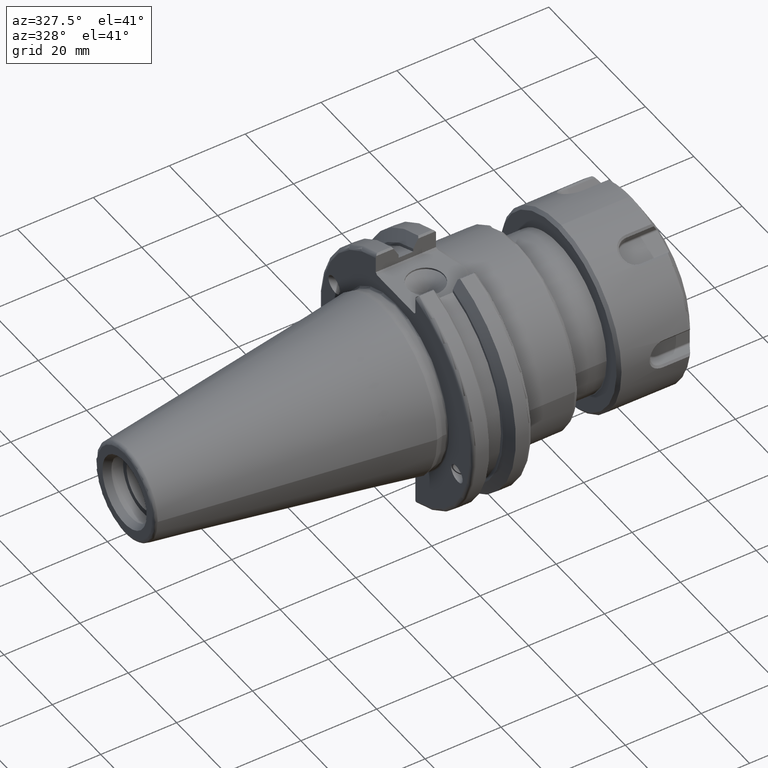
[diagram: clean part render]
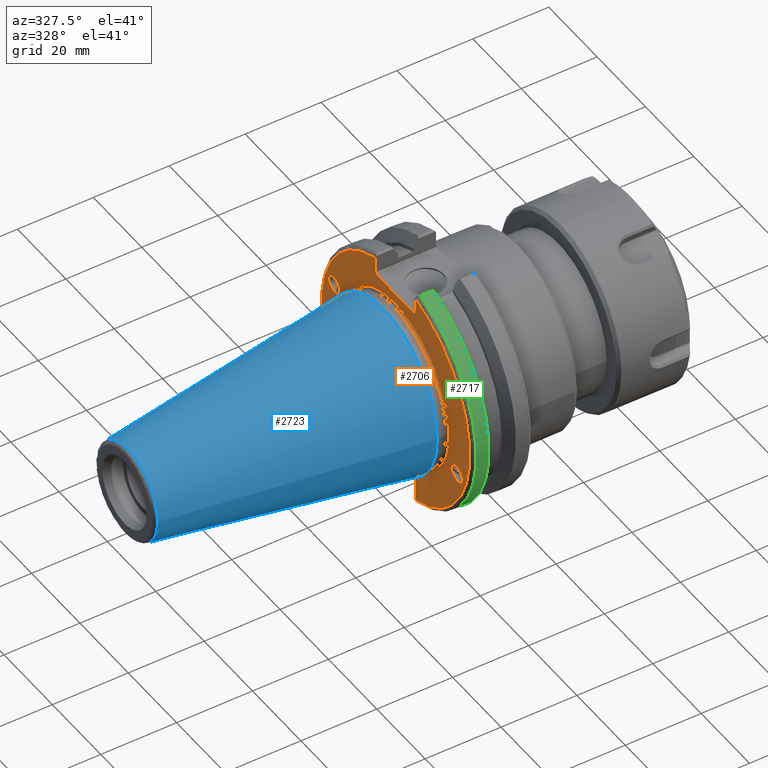
[diagram: same view with three faces highlighted in distinct colors, each labeled with its STEP entity id]
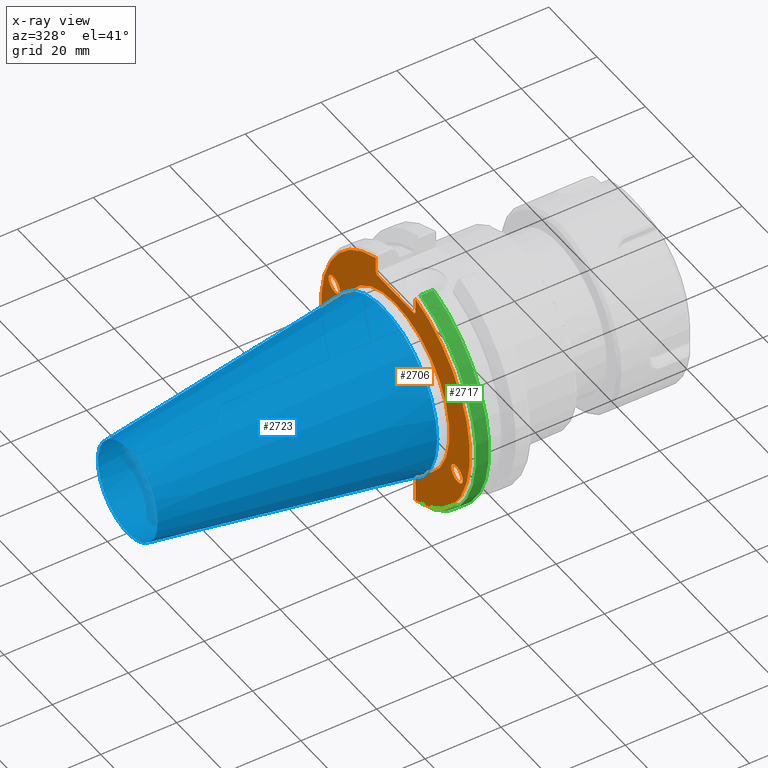
[diagram: x-ray of the same camera — body ghosted, the three highlighted faces saturated]
A machine part, auxiliary view with three faces highlighted in distinct colors.
The next image is the same camera in x-ray (body ghosted, the three faces saturated) — at least one of them is partly hidden behind the body in this view.
Their STEP definitions:

[orange] entity #2706 — the highlighted planar face has unit normal (-1, 0, 0).
#163=ELLIPSE('',#2927,2.44154917752292,2.00000000000001);
#164=ELLIPSE('',#2941,2.44154917752292,2.00000000000001);
#304=FACE_BOUND('',#577,.T.);
#305=FACE_BOUND('',#578,.T.);
#306=FACE_BOUND('',#579,.T.);
#324=PLANE('',#2979);
#412=FACE_OUTER_BOUND('',#576,.T.);
#576=EDGE_LOOP('',(#1976,#1977,#1978,#1979,#1980,#1981,#1982,#1983,#1984,
#1985,#1986,#1987));
#577=EDGE_LOOP('',(#1988));
#578=EDGE_LOOP('',(#1989));
#579=EDGE_LOOP('',(#1990));
#742=LINE('',#4305,#905);
#743=LINE('',#4307,#906);
#744=LINE('',#4309,#907);
#745=LINE('',#4311,#908);
#746=LINE('',#4313,#909);
#747=LINE('',#4317,#910);
#748=LINE('',#4319,#911);
#749=LINE('',#4321,#912);
#750=LINE('',#4323,#913);
#751=LINE('',#4324,#914);
#905=VECTOR('',#3358,10.);
#906=VECTOR('',#3359,10.);
#907=VECTOR('',#3360,10.);
#908=VECTOR('',#3361,10.);
#909=VECTOR('',#3362,10.);
#910=VECTOR('',#3365,10.);
#911=VECTOR('',#3366,10.);
#912=VECTOR('',#3367,10.);
#913=VECTOR('',#3368,10.);
#914=VECTOR('',#3369,10.);
#1081=CIRCLE('',#2977,22.3);
#1083=CIRCLE('',#2980,30.75);
#1084=CIRCLE('',#2981,30.75);
#1182=VERTEX_POINT('',#4008);
#1192=VERTEX_POINT('',#4087);
#1229=VERTEX_POINT('',#4296);
#1230=VERTEX_POINT('',#4301);
#1231=VERTEX_POINT('',#4302);
#1232=VERTEX_POINT('',#4304);
#1233=VERTEX_POINT('',#4306);
#1234=VERTEX_POINT('',#4308);
#1235=VERTEX_POINT('',#4310);
#1236=VERTEX_POINT('',#4312);
#1237=VERTEX_POINT('',#4314);
#1238=VERTEX_POINT('',#4316);
#1239=VERTEX_POINT('',#4318);
#1240=VERTEX_POINT('',#4320);
#1241=VERTEX_POINT('',#4322);
#1448=EDGE_CURVE('',#1182,#1182,#163,.T.);
#1464=EDGE_CURVE('',#1192,#1192,#164,.T.);
#1512=EDGE_CURVE('',#1229,#1229,#1081,.T.);
#1514=EDGE_CURVE('',#1230,#1231,#1083,.T.);
#1515=EDGE_CURVE('',#1230,#1232,#742,.T.);
#1516=EDGE_CURVE('',#1233,#1232,#743,.T.);
#1517=EDGE_CURVE('',#1233,#1234,#744,.T.);
#1518=EDGE_CURVE('',#1235,#1234,#745,.T.);
#1519=EDGE_CURVE('',#1235,#1236,#746,.T.);
#1520=EDGE_CURVE('',#1237,#1236,#1084,.T.);
#1521=EDGE_CURVE('',#1237,#1238,#747,.T.);
#1522=EDGE_CURVE('',#1239,#1238,#748,.T.);
#1523=EDGE_CURVE('',#1239,#1240,#749,.T.);
#1524=EDGE_CURVE('',#1241,#1240,#750,.T.);
#1525=EDGE_CURVE('',#1241,#1231,#751,.T.);
#1976=ORIENTED_EDGE('',*,*,#1514,.F.);
#1977=ORIENTED_EDGE('',*,*,#1515,.T.);
#1978=ORIENTED_EDGE('',*,*,#1516,.F.);
#1979=ORIENTED_EDGE('',*,*,#1517,.T.);
#1980=ORIENTED_EDGE('',*,*,#1518,.F.);
#1981=ORIENTED_EDGE('',*,*,#1519,.T.);
#1982=ORIENTED_EDGE('',*,*,#1520,.F.);
#1983=ORIENTED_EDGE('',*,*,#1521,.T.);
#1984=ORIENTED_EDGE('',*,*,#1522,.F.);
#1985=ORIENTED_EDGE('',*,*,#1523,.T.);
#1986=ORIENTED_EDGE('',*,*,#1524,.F.);
#1987=ORIENTED_EDGE('',*,*,#1525,.T.);
#1988=ORIENTED_EDGE('',*,*,#1448,.T.);
#1989=ORIENTED_EDGE('',*,*,#1464,.T.);
#1990=ORIENTED_EDGE('',*,*,#1512,.F.);
#2706=ADVANCED_FACE('',(#412,#304,#305,#306),#324,.T.);
#2927=AXIS2_PLACEMENT_3D('',#4010,#3232,#3233);
#2941=AXIS2_PLACEMENT_3D('',#4089,#3264,#3265);
#2977=AXIS2_PLACEMENT_3D('',#4298,#3350,#3351);
#2979=AXIS2_PLACEMENT_3D('',#4300,#3354,#3355);
#2980=AXIS2_PLACEMENT_3D('',#4303,#3356,#3357);
#2981=AXIS2_PLACEMENT_3D('',#4315,#3363,#3364);
#3232=DIRECTION('center_axis',(1.,0.,0.));
#3233=DIRECTION('ref_axis',(5.68400912649E-17,-0.939692620785909,-0.342020143325667));
#3264=DIRECTION('center_axis',(1.,0.,0.));
#3265=DIRECTION('ref_axis',(5.68400912649E-17,0.939692620785909,0.342020143325667));
#3350=DIRECTION('center_axis',(-1.,0.,0.));
#3351=DIRECTION('ref_axis',(0.,-1.,1.83697019872103E-16));
#3354=DIRECTION('center_axis',(-1.,0.,0.));
#3355=DIRECTION('ref_axis',(0.,0.,1.));
#3356=DIRECTION('center_axis',(1.,0.,0.));
#3357=DIRECTION('ref_axis',(0.,-1.,1.60812264967664E-16));
#3358=DIRECTION('',(0.,0.,-1.));
#3359=DIRECTION('',(0.,-0.70710678118655,0.707106781186545));
#3360=DIRECTION('',(0.,1.,0.));
#3361=DIRECTION('',(0.,-0.707106781186549,-0.707106781186546));
#3362=DIRECTION('',(0.,0.,1.));
#3363=DIRECTION('center_axis',(1.,0.,0.));
#3364=DIRECTION('ref_axis',(0.,1.,1.60812264967664E-16));
#3365=DIRECTION('',(0.,0.,1.));
#3366=DIRECTION('',(0.,0.707106781186549,-0.707106781186546));
#3367=DIRECTION('',(0.,-1.,0.));
#3368=DIRECTION('',(0.,0.707106781186549,0.707106781186546));
#3369=DIRECTION('',(0.,0.,-1.));
#4008=CARTESIAN_POINT('',(3.175,-23.0773950158153,-8.39948487016));
#4010=CARTESIAN_POINT('Origin',(3.175,-25.3717007612195,-9.23454386979305));
#4087=CARTESIAN_POINT('',(3.175,23.0773950158153,8.39948487016));
#4089=CARTESIAN_POINT('Origin',(3.175,25.3717007612195,9.23454386979306));
#4296=CARTESIAN_POINT('',(3.175,-2.7309623620986E-15,22.3));
#4298=CARTESIAN_POINT('Origin',(3.175,0.,0.));
#4300=CARTESIAN_POINT('Origin',(3.175,31.75,0.));
#4301=CARTESIAN_POINT('',(3.175,-8.18999999999999,29.6392712461019));
#4302=CARTESIAN_POINT('',(3.175,-8.19,-29.6392712461019));
#4303=CARTESIAN_POINT('Origin',(3.175,0.,0.));
#4304=CARTESIAN_POINT('',(3.175,-8.18999999999999,25.5));
#4305=CARTESIAN_POINT('',(3.175,-8.18999999999999,12.5));
#4306=CARTESIAN_POINT('',(3.175,-7.68999999999999,25.));
#4307=CARTESIAN_POINT('',(3.175,8.29500000000007,9.01500000000004));
#4308=CARTESIAN_POINT('',(3.175,7.69,25.));
#4309=CARTESIAN_POINT('',(3.175,15.875,25.));
#4310=CARTESIAN_POINT('',(3.175,8.19,25.5));
#4311=CARTESIAN_POINT('',(3.175,7.58000000000002,24.89));
#4312=CARTESIAN_POINT('',(3.175,8.19,29.6392712461019));
#4313=CARTESIAN_POINT('',(3.175,8.19,12.5));
#4314=CARTESIAN_POINT('',(3.175,8.18999999999999,-29.6392712461019));
#4315=CARTESIAN_POINT('Origin',(3.175,0.,0.));
#4316=CARTESIAN_POINT('',(3.175,8.18999999999999,-23.1));
#4317=CARTESIAN_POINT('',(3.175,8.18999999999999,-11.3));
#4318=CARTESIAN_POINT('',(3.175,7.69,-22.6));
#4319=CARTESIAN_POINT('',(3.175,8.18000000000002,-23.09));
#4320=CARTESIAN_POINT('',(3.175,-7.69,-22.6));
#4321=CARTESIAN_POINT('',(3.175,15.875,-22.6));
#4322=CARTESIAN_POINT('',(3.175,-8.19,-23.1));
#4323=CARTESIAN_POINT('',(3.175,7.69500000000004,-7.21500000000002));
#4324=CARTESIAN_POINT('',(3.175,-8.19,-11.3));

[blue] entity #2723 — the highlighted conical surface has half-angle 8.297 deg.
#429=FACE_OUTER_BOUND('',#597,.T.);
#597=EDGE_LOOP('',(#2096,#2097,#2098,#2099,#2100));
#779=LINE('',#4570,#942);
#942=VECTOR('',#3457,17.2484375);
#1092=CIRCLE('',#3004,12.3966635780937);
#1093=CIRCLE('',#3005,12.3966635780937);
#1097=CIRCLE('',#3011,22.225);
#1283=VERTEX_POINT('',#4557);
#1284=VERTEX_POINT('',#4558);
#1287=VERTEX_POINT('',#4568);
#1586=EDGE_CURVE('',#1283,#1284,#1092,.T.);
#1587=EDGE_CURVE('',#1284,#1283,#1093,.T.);
#1591=EDGE_CURVE('',#1287,#1287,#1097,.T.);
#1592=EDGE_CURVE('',#1287,#1284,#779,.T.);
#2096=ORIENTED_EDGE('',*,*,#1591,.F.);
#2097=ORIENTED_EDGE('',*,*,#1592,.T.);
#2098=ORIENTED_EDGE('',*,*,#1586,.F.);
#2099=ORIENTED_EDGE('',*,*,#1587,.F.);
#2100=ORIENTED_EDGE('',*,*,#1592,.F.);
#2660=CONICAL_SURFACE('',#3010,17.2484375,0.144812498238939);
#2723=ADVANCED_FACE('',(#429),#2660,.T.);
#3004=AXIS2_PLACEMENT_3D('',#4559,#3441,#3442);
#3005=AXIS2_PLACEMENT_3D('',#4560,#3443,#3444);
#3010=AXIS2_PLACEMENT_3D('',#4567,#3453,#3454);
#3011=AXIS2_PLACEMENT_3D('',#4569,#3455,#3456);
#3441=DIRECTION('center_axis',(-1.,0.,0.));
#3442=DIRECTION('ref_axis',(0.,-1.,3.06161699786838E-17));
#3443=DIRECTION('center_axis',(-1.,0.,0.));
#3444=DIRECTION('ref_axis',(0.,-1.,3.06161699786838E-17));
#3453=DIRECTION('center_axis',(1.,0.,0.));
#3454=DIRECTION('ref_axis',(0.,1.,0.));
#3455=DIRECTION('center_axis',(1.,0.,0.));
#3456=DIRECTION('ref_axis',(0.,0.,-1.));
#3457=DIRECTION('',(-0.989532981063282,0.144306893071729,1.76724974695192E-17));
#4557=CARTESIAN_POINT('',(-67.3943068930717,-1.5181534371019E-15,12.3966635780937));
#4558=CARTESIAN_POINT('',(-67.3943068930718,-12.3966635780937,-1.5181534371019E-15));
#4559=CARTESIAN_POINT('Origin',(-67.3943068930717,0.,-1.89769179637738E-15));
#4560=CARTESIAN_POINT('Origin',(-67.3943068930717,0.,-1.89769179637738E-15));
#4567=CARTESIAN_POINT('Origin',(-34.125,0.,0.));
#4568=CARTESIAN_POINT('',(0.,-22.225,-2.72177751110499E-15));
#4569=CARTESIAN_POINT('Origin',(0.,0.,0.));
#4570=CARTESIAN_POINT('',(-34.125,-17.2484375,-2.11232437746682E-15));

[green] entity #2717 — the highlighted cylindrical surface (partial cylindrical patch) has radius 31.75 mm, axis along (1, 0, 0).
#272=CYLINDRICAL_SURFACE('',#2997,31.75);
#423=FACE_OUTER_BOUND('',#590,.T.);
#590=EDGE_LOOP('',(#2071,#2072,#2073,#2074));
#776=LINE('',#4511,#939);
#777=LINE('',#4517,#940);
#939=VECTOR('',#3424,10.);
#940=VECTOR('',#3427,10.);
#1089=CIRCLE('',#2995,31.75);
#1090=CIRCLE('',#2998,31.75);
#1275=VERTEX_POINT('',#4490);
#1276=VERTEX_POINT('',#4499);
#1277=VERTEX_POINT('',#4510);
#1278=VERTEX_POINT('',#4516);
#1573=EDGE_CURVE('',#1275,#1276,#1089,.T.);
#1575=EDGE_CURVE('',#1276,#1277,#776,.T.);
#1577=EDGE_CURVE('',#1278,#1275,#777,.T.);
#1578=EDGE_CURVE('',#1277,#1278,#1090,.T.);
#2071=ORIENTED_EDGE('',*,*,#1573,.F.);
#2072=ORIENTED_EDGE('',*,*,#1577,.F.);
#2073=ORIENTED_EDGE('',*,*,#1578,.F.);
#2074=ORIENTED_EDGE('',*,*,#1575,.F.);
#2717=ADVANCED_FACE('',(#423),#272,.T.);
#2995=AXIS2_PLACEMENT_3D('',#4500,#3420,#3421);
#2997=AXIS2_PLACEMENT_3D('',#4515,#3425,#3426);
#2998=AXIS2_PLACEMENT_3D('',#4518,#3428,#3429);
#3420=DIRECTION('center_axis',(-1.,0.,0.));
#3421=DIRECTION('ref_axis',(0.,-1.,1.60812264967664E-16));
#3424=DIRECTION('',(1.,0.,0.));
#3425=DIRECTION('center_axis',(1.,0.,0.));
#3426=DIRECTION('ref_axis',(0.,-1.,1.22464679914735E-16));
#3427=DIRECTION('',(-1.,0.,0.));
#3428=DIRECTION('center_axis',(1.,0.,0.));
#3429=DIRECTION('ref_axis',(0.,0.,-1.));
#4490=CARTESIAN_POINT('',(4.175,-8.67204822802685,-30.5427254764662));
#4499=CARTESIAN_POINT('',(4.175,-8.67204822802685,30.5427254764662));
#4500=CARTESIAN_POINT('Origin',(4.175,0.,0.));
#4510=CARTESIAN_POINT('',(7.60083323092435,-8.67204822802685,30.5427254764662));
#4511=CARTESIAN_POINT('',(5.38791661546218,-8.67204822802685,30.5427254764662));
#4515=CARTESIAN_POINT('Origin',(5.38791661546218,0.,0.));
#4516=CARTESIAN_POINT('',(7.60083323092435,-8.67204822802685,-30.5427254764662));
#4517=CARTESIAN_POINT('',(5.38791661546218,-8.67204822802685,-30.5427254764662));
#4518=CARTESIAN_POINT('Origin',(7.60083323092435,0.,0.));